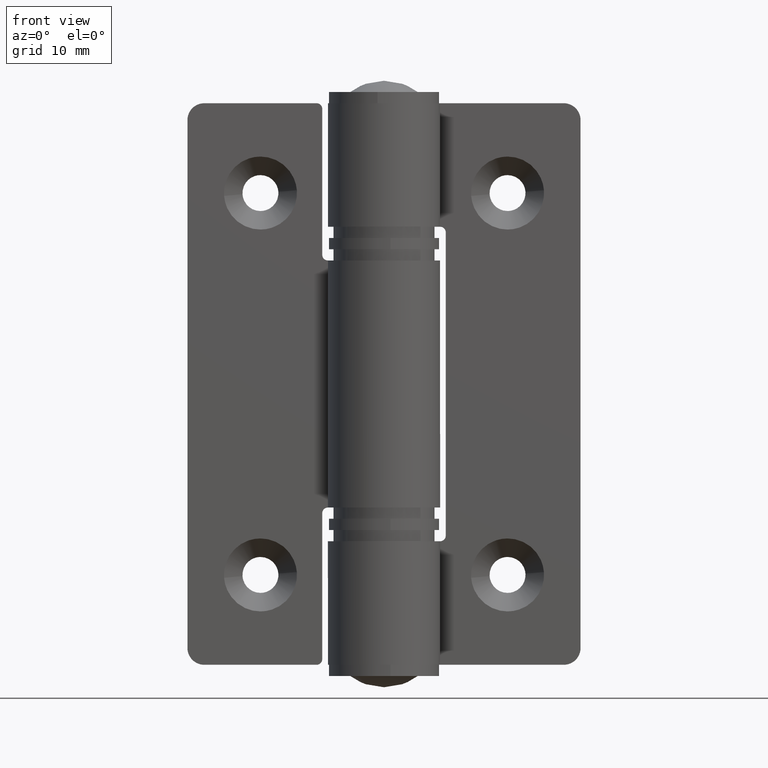
[diagram: clean part render]
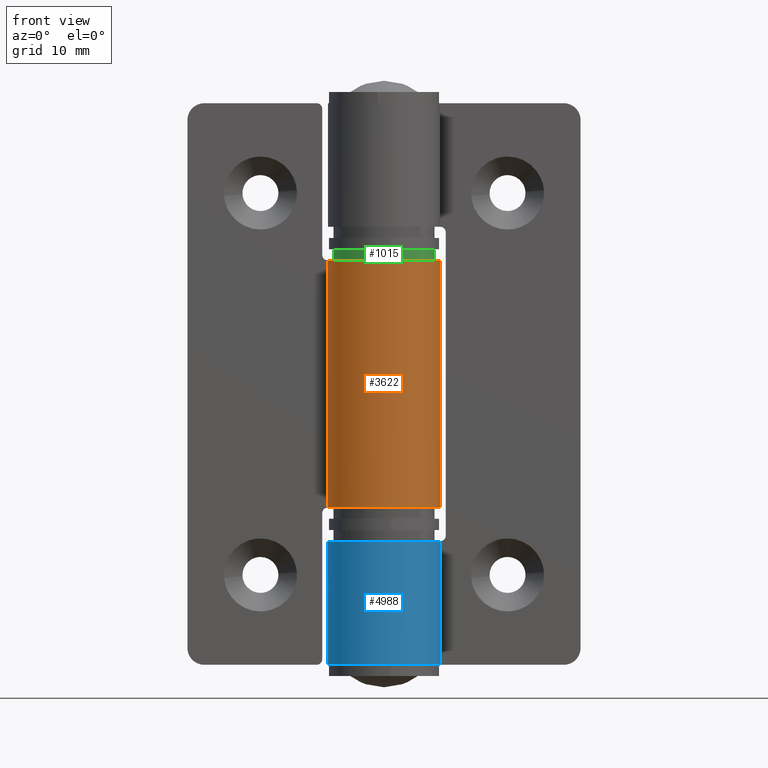
[diagram: same view with three faces highlighted in distinct colors, each labeled with its STEP entity id]
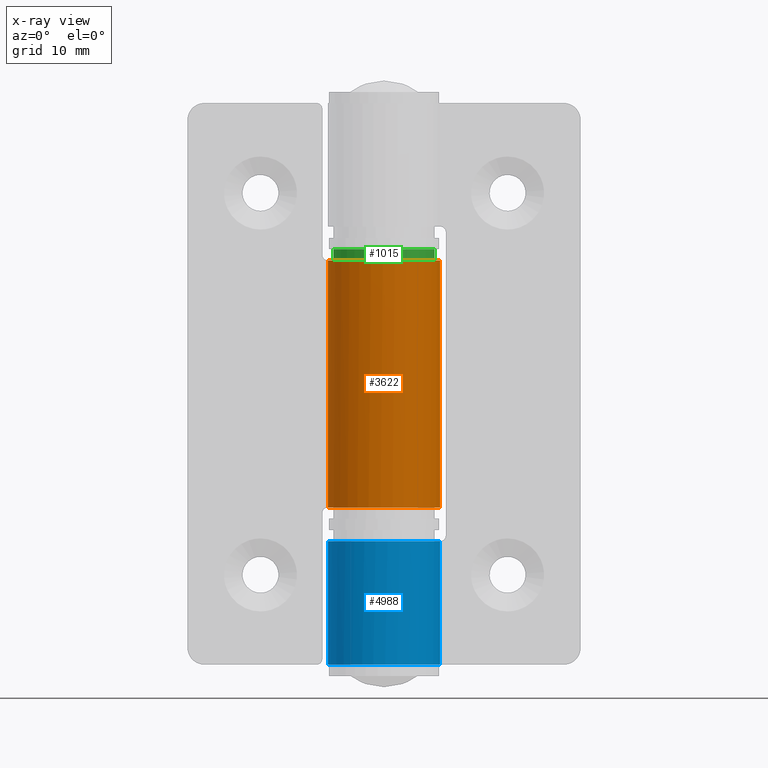
[diagram: x-ray of the same camera — body ghosted, the three highlighted faces saturated]
A machine part, front view with three faces highlighted in distinct colors.
The next image is the same camera in x-ray (body ghosted, the three faces saturated) — at least one of them is partly hidden behind the body in this view.
Their STEP definitions:

[orange] entity #3622 — the highlighted face is a freeform B-spline surface patch.
#3322=CARTESIAN_POINT('',(1.740830E-012,4.999999999999091,36.0));
#3323=VERTEX_POINT('',#3322);
#3358=CARTESIAN_POINT('',(-4.073082370878840,2.900000000000845,36.0));
#3359=VERTEX_POINT('',#3358);
#3365=CARTESIAN_POINT('',(-4.073082370878845,2.900000000000850,36.0));
#3366=CARTESIAN_POINT('',(-6.353626591384656,-0.303049813983671,36.0));
#3367=CARTESIAN_POINT('',(-3.778576303774068,-3.274501659264923,36.0));
#3368=CARTESIAN_POINT('',(-1.203526016163482,-6.245953504546176,36.0));
#3369=CARTESIAN_POINT('',(2.291287847479962,-4.444097208657318,36.0));
#3370=CARTESIAN_POINT('',(5.786101711123409,-2.642240912768461,36.0));
#3371=CARTESIAN_POINT('',(4.859037252549383,1.178879543615715,36.0));
#3372=CARTESIAN_POINT('',(3.931972793975359,4.999999999999883,36.0));
#3373=CARTESIAN_POINT('',(1.741196E-012,4.999999999999096,36.0));
#3381=(BOUNDED_CURVE()B_SPLINE_CURVE(2,(#3365,#3366,#3367,#3368,#3369,#3370,#3371,#3372,#3373),.UNSPECIFIED.,.F.,.U.)B_SPLINE_CURVE_WITH_KNOTS((3,2,2,2,3),(0.0,0.250000000000000,0.500000000000000,0.750000000000000,1.0),.UNSPECIFIED.)CURVE()GEOMETRIC_REPRESENTATION_ITEM()RATIONAL_B_SPLINE_CURVE((1.0,0.786058492964424,1.0,0.786058492964424,1.0,0.786058492964424,1.0,0.786058492964424,1.0))REPRESENTATION_ITEM(''));
#3382=EDGE_CURVE('',#3359,#3323,#3381,.T.);
#3440=CARTESIAN_POINT('',(1.740830E-012,4.999999999999091,13.999999999999799));
#3441=VERTEX_POINT('',#3440);
#3447=CARTESIAN_POINT('',(-4.073082370878840,2.900000000000845,13.999999999999799));
#3448=VERTEX_POINT('',#3447);
#3449=CARTESIAN_POINT('',(1.738135E-012,4.999999999999096,13.999999999999799));
#3450=CARTESIAN_POINT('',(3.931972793975359,4.999999999999885,13.999999999999797));
#3451=CARTESIAN_POINT('',(4.859037252549383,1.178879543615714,13.999999999999799));
#3452=CARTESIAN_POINT('',(5.786101711123407,-2.642240912768460,13.999999999999797));
#3453=CARTESIAN_POINT('',(2.291287847479965,-4.444097208657317,13.999999999999799));
#3454=CARTESIAN_POINT('',(-1.203526016163480,-6.245953504546177,13.999999999999797));
#3455=CARTESIAN_POINT('',(-3.778576303774069,-3.274501659264922,13.999999999999799));
#3456=CARTESIAN_POINT('',(-6.353626591384653,-0.303049813983671,13.999999999999797));
#3457=CARTESIAN_POINT('',(-4.073082370878847,2.900000000000848,13.999999999999799));
#3465=(BOUNDED_CURVE()B_SPLINE_CURVE(2,(#3449,#3450,#3451,#3452,#3453,#3454,#3455,#3456,#3457),.UNSPECIFIED.,.F.,.U.)B_SPLINE_CURVE_WITH_KNOTS((3,2,2,2,3),(0.0,0.250000000000000,0.500000000000000,0.750000000000000,1.0),.UNSPECIFIED.)CURVE()GEOMETRIC_REPRESENTATION_ITEM()RATIONAL_B_SPLINE_CURVE((1.0,0.786058492964424,1.0,0.786058492964424,1.0,0.786058492964424,1.0,0.786058492964424,1.0))REPRESENTATION_ITEM(''));
#3466=EDGE_CURVE('',#3441,#3448,#3465,.T.);
#3582=CARTESIAN_POINT('',(-4.073082370878840,2.900000000000845,36.0));
#3583=CARTESIAN_POINT('',(-4.073082370878840,2.900000000000845,13.999999999999799));
#3584=QUASI_UNIFORM_CURVE('',1,(#3582,#3583),.UNSPECIFIED.,.F.,.U.);
#3585=EDGE_CURVE('',#3359,#3448,#3584,.T.);
#3590=CARTESIAN_POINT('',(-3.966766701453392,3.043807145042223,36.550000000000011));
#3591=CARTESIAN_POINT('',(-3.966766701453392,3.043807145042223,13.436249999999790));
#3592=CARTESIAN_POINT('',(-7.862662186759799,-2.033422701348696,36.550000000000018));
#3593=CARTESIAN_POINT('',(-7.862662186759799,-2.033422701348696,13.436249999999792));
#3594=CARTESIAN_POINT('',(-1.993745344622242,-4.585300371925351,36.550000000000011));
#3595=CARTESIAN_POINT('',(-1.993745344622242,-4.585300371925351,13.436249999999790));
#3596=CARTESIAN_POINT('',(3.875171497515315,-7.137178042502007,36.550000000000018));
#3597=CARTESIAN_POINT('',(3.875171497515315,-7.137178042502007,13.436249999999792));
#3598=CARTESIAN_POINT('',(4.931428007688253,-0.825238029302350,36.550000000000011));
#3599=CARTESIAN_POINT('',(4.931428007688253,-0.825238029302350,13.436249999999790));
#3600=CARTESIAN_POINT('',(5.987684517861193,5.486701983897305,36.550000000000018));
#3601=CARTESIAN_POINT('',(5.987684517861193,5.486701983897305,13.436249999999792));
#3602=CARTESIAN_POINT('',(-0.392295478637415,4.984586668664655,36.550000000000011));
#3603=CARTESIAN_POINT('',(-0.392295478637415,4.984586668664655,13.436249999999790));
#3611=(BOUNDED_SURFACE()B_SPLINE_SURFACE(1,2,((#3590,#3592,#3594,#3596,#3598,#3600,#3602),(#3591,#3593,#3595,#3597,#3599,#3601,#3603)),.UNSPECIFIED.,.F.,.F.,.U.)B_SPLINE_SURFACE_WITH_KNOTS((2,2),(3,2,2,3),(0.0,23.113750000000220),(0.0,9.754651771315626,19.509303542631251,29.263955313946880),.UNSPECIFIED.)GEOMETRIC_REPRESENTATION_ITEM()RATIONAL_B_SPLINE_SURFACE(((1.0,0.615661475325658,1.0,0.615661475325658,1.0,0.615661475325658,1.0),(1.0,0.615661475325658,1.0,0.615661475325658,1.0,0.615661475325658,1.0)))REPRESENTATION_ITEM('')SURFACE());
#3612=CARTESIAN_POINT('',(1.740830E-012,4.999999999999091,36.0));
#3613=CARTESIAN_POINT('',(1.740830E-012,4.999999999999091,13.999999999999799));
#3614=QUASI_UNIFORM_CURVE('',1,(#3612,#3613),.UNSPECIFIED.,.F.,.U.);
#3615=EDGE_CURVE('',#3323,#3441,#3614,.T.);
#3616=ORIENTED_EDGE('',*,*,#3615,.F.);
#3617=ORIENTED_EDGE('',*,*,#3382,.F.);
#3618=ORIENTED_EDGE('',*,*,#3585,.T.);
#3619=ORIENTED_EDGE('',*,*,#3466,.F.);
#3620=EDGE_LOOP('',(#3616,#3617,#3618,#3619));
#3621=FACE_OUTER_BOUND('',#3620,.T.);
#3622=ADVANCED_FACE('',(#3621),#3611,.T.);

[blue] entity #4988 — the highlighted face is a freeform B-spline surface patch.
#4543=CARTESIAN_POINT('',(1.738135E-012,4.999999999999190,11.0));
#4544=VERTEX_POINT('',#4543);
#4550=CARTESIAN_POINT('',(4.073082370884395,2.900000000000750,11.0));
#4551=VERTEX_POINT('',#4550);
#4552=CARTESIAN_POINT('',(1.738135E-012,4.999999999999190,11.0));
#4553=CARTESIAN_POINT('',(-3.931972793971454,4.999999999998308,11.000000000000002));
#4554=CARTESIAN_POINT('',(-4.859037252544247,1.178879543614277,11.0));
#4555=CARTESIAN_POINT('',(-5.786101711117039,-2.642240912769751,11.000000000000002));
#4556=CARTESIAN_POINT('',(-2.291287847473639,-4.444097208657751,11.0));
#4557=CARTESIAN_POINT('',(1.203526016169762,-6.245953504545751,11.000000000000002));
#4558=CARTESIAN_POINT('',(3.778576303779822,-3.274501659264614,11.0));
#4559=CARTESIAN_POINT('',(6.353626591389886,-0.303049813983473,11.000000000000002));
#4560=CARTESIAN_POINT('',(4.073082370884399,2.900000000000754,11.0));
#4568=(BOUNDED_CURVE()B_SPLINE_CURVE(2,(#4552,#4553,#4554,#4555,#4556,#4557,#4558,#4559,#4560),.UNSPECIFIED.,.F.,.U.)B_SPLINE_CURVE_WITH_KNOTS((3,2,2,2,3),(0.0,0.250000000000000,0.500000000000000,0.750000000000000,1.0),.UNSPECIFIED.)CURVE()GEOMETRIC_REPRESENTATION_ITEM()RATIONAL_B_SPLINE_CURVE((1.0,0.786058492964457,1.0,0.786058492964457,1.0,0.786058492964457,1.0,0.786058492964457,1.0))REPRESENTATION_ITEM(''));
#4569=EDGE_CURVE('',#4544,#4551,#4568,.T.);
#4817=CARTESIAN_POINT('',(1.738135E-012,4.999999999999091,0.0));
#4818=VERTEX_POINT('',#4817);
#4853=CARTESIAN_POINT('',(4.073082370884395,2.900000000000750,0.0));
#4854=VERTEX_POINT('',#4853);
#4860=CARTESIAN_POINT('',(4.073082370884400,2.900000000000752,0.0));
#4861=CARTESIAN_POINT('',(6.353626591389884,-0.303049813983473,0.0));
#4862=CARTESIAN_POINT('',(3.778576303779824,-3.274501659264612,0.0));
#4863=CARTESIAN_POINT('',(1.203526016169763,-6.245953504545753,0.0));
#4864=CARTESIAN_POINT('',(-2.291287847473640,-4.444097208657750,0.0));
#4865=CARTESIAN_POINT('',(-5.786101711117044,-2.642240912769748,0.0));
#4866=CARTESIAN_POINT('',(-4.859037252544246,1.178879543614282,0.0));
#4867=CARTESIAN_POINT('',(-3.931972793971451,4.999999999998305,0.0));
#4868=CARTESIAN_POINT('',(1.736910E-012,4.999999999999096,0.0));
#4876=(BOUNDED_CURVE()B_SPLINE_CURVE(2,(#4860,#4861,#4862,#4863,#4864,#4865,#4866,#4867,#4868),.UNSPECIFIED.,.F.,.U.)B_SPLINE_CURVE_WITH_KNOTS((3,2,2,2,3),(0.0,0.250000000000000,0.500000000000000,0.750000000000000,1.0),.UNSPECIFIED.)CURVE()GEOMETRIC_REPRESENTATION_ITEM()RATIONAL_B_SPLINE_CURVE((1.0,0.786058492964457,1.0,0.786058492964457,1.0,0.786058492964457,1.0,0.786058492964457,1.0))REPRESENTATION_ITEM(''));
#4877=EDGE_CURVE('',#4854,#4818,#4876,.T.);
#4952=CARTESIAN_POINT('',(0.130884741541090,4.998286624876906,11.275000000000000));
#4953=CARTESIAN_POINT('',(0.130884741541090,4.998286624876906,-0.281874999999999));
#4954=CARTESIAN_POINT('',(-6.190479291165865,5.163817367646388,11.275000000000002));
#4955=CARTESIAN_POINT('',(-6.190479291165865,5.163817367646388,-0.281875000000000));
#4956=CARTESIAN_POINT('',(-4.893741260658319,-1.025327495825330,11.275000000000000));
#4957=CARTESIAN_POINT('',(-4.893741260658319,-1.025327495825330,-0.281874999999999));
#4958=CARTESIAN_POINT('',(-3.597003230150774,-7.214472359297051,11.275000000000002));
#4959=CARTESIAN_POINT('',(-3.597003230150774,-7.214472359297051,-0.281875000000000));
#4960=CARTESIAN_POINT('',(2.126264062495511,-4.525373038385268,11.275000000000000));
#4961=CARTESIAN_POINT('',(2.126264062495511,-4.525373038385268,-0.281874999999999));
#4962=CARTESIAN_POINT('',(7.849531355141798,-1.836273717473486,11.275000000000002));
#4963=CARTESIAN_POINT('',(7.849531355141798,-1.836273717473486,-0.281875000000000));
#4964=CARTESIAN_POINT('',(3.913040784263549,3.112573183188283,11.275000000000000));
#4965=CARTESIAN_POINT('',(3.913040784263549,3.112573183188283,-0.281874999999999));
#4973=(BOUNDED_SURFACE()B_SPLINE_SURFACE(1,2,((#4952,#4954,#4956,#4958,#4960,#4962,#4964),(#4953,#4955,#4957,#4959,#4961,#4963,#4965)),.UNSPECIFIED.,.F.,.F.,.U.)B_SPLINE_SURFACE_WITH_KNOTS((2,2),(3,2,2,3),(0.0,11.556875000000000),(0.0,9.682736480552412,19.365472961104832,29.048209441657239),.UNSPECIFIED.)GEOMETRIC_REPRESENTATION_ITEM()RATIONAL_B_SPLINE_SURFACE(((1.0,0.620235491268260,1.0,0.620235491268260,1.0,0.620235491268260,1.0),(1.0,0.620235491268260,1.0,0.620235491268260,1.0,0.620235491268260,1.0)))REPRESENTATION_ITEM('')SURFACE());
#4974=ORIENTED_EDGE('',*,*,#4569,.F.);
#4975=CARTESIAN_POINT('',(1.738135E-012,4.999999999999190,11.0));
#4976=CARTESIAN_POINT('',(1.738135E-012,4.999999999999091,0.0));
#4977=QUASI_UNIFORM_CURVE('',1,(#4975,#4976),.UNSPECIFIED.,.F.,.U.);
#4978=EDGE_CURVE('',#4544,#4818,#4977,.T.);
#4979=ORIENTED_EDGE('',*,*,#4978,.T.);
#4980=ORIENTED_EDGE('',*,*,#4877,.F.);
#4981=CARTESIAN_POINT('',(4.073082370884395,2.900000000000750,11.0));
#4982=CARTESIAN_POINT('',(4.073082370884395,2.900000000000750,0.0));
#4983=QUASI_UNIFORM_CURVE('',1,(#4981,#4982),.UNSPECIFIED.,.F.,.U.);
#4984=EDGE_CURVE('',#4551,#4854,#4983,.T.);
#4985=ORIENTED_EDGE('',*,*,#4984,.F.);
#4986=EDGE_LOOP('',(#4974,#4979,#4980,#4985));
#4987=FACE_OUTER_BOUND('',#4986,.T.);
#4988=ADVANCED_FACE('',(#4987),#4973,.T.);

[green] entity #1015 — the highlighted face is a freeform B-spline surface patch.
#870=CARTESIAN_POINT('',(2.061552812808675,4.0,10.999999999999860));
#871=VERTEX_POINT('',#870);
#872=CARTESIAN_POINT('',(-2.061552812805995,4.0,11.0));
#873=VERTEX_POINT('',#872);
#879=CARTESIAN_POINT('',(-2.061552812805995,4.0,11.999999999999799));
#880=VERTEX_POINT('',#879);
#881=CARTESIAN_POINT('',(-2.061552812805995,4.0,11.999999999999799));
#882=CARTESIAN_POINT('',(-2.061552812805995,4.0,11.0));
#883=QUASI_UNIFORM_CURVE('',1,(#881,#882),.UNSPECIFIED.,.F.,.U.);
#884=EDGE_CURVE('',#880,#873,#883,.T.);
#886=CARTESIAN_POINT('',(2.061552812811665,4.0,11.999999999999799));
#887=VERTEX_POINT('',#886);
#893=CARTESIAN_POINT('',(2.061552812811665,4.0,11.999999999999799));
#894=CARTESIAN_POINT('',(2.061552812808675,4.0,10.999999999999860));
#895=QUASI_UNIFORM_CURVE('',1,(#893,#894),.UNSPECIFIED.,.F.,.U.);
#896=EDGE_CURVE('',#887,#871,#895,.T.);
#907=CARTESIAN_POINT('',(2.061552812808676,4.0,10.999999999999860));
#908=CARTESIAN_POINT('',(5.207376356084033,2.378679656440233,10.999999999999861));
#909=CARTESIAN_POINT('',(4.373213921133783,-1.060660171780316,10.999999999999860));
#910=CARTESIAN_POINT('',(3.539051486183531,-4.500000000000864,10.999999999999861));
#911=CARTESIAN_POINT('',(-1.190221E-012,-4.499999999999930,10.999999999999860));
#912=CARTESIAN_POINT('',(-3.539051486185914,-4.499999999998993,10.999999999999861));
#913=CARTESIAN_POINT('',(-4.373213921134344,-1.060660171778001,10.999999999999860));
#914=CARTESIAN_POINT('',(-5.207376356082775,2.378679656442987,10.999999999999861));
#915=CARTESIAN_POINT('',(-2.061552812805995,4.0,11.0));
#923=(BOUNDED_CURVE()B_SPLINE_CURVE(2,(#907,#908,#909,#910,#911,#912,#913,#914,#915),.UNSPECIFIED.,.F.,.U.)B_SPLINE_CURVE_WITH_KNOTS((3,2,2,2,3),(0.0,0.250000000000000,0.500000000000000,0.750000000000000,1.0),.UNSPECIFIED.)CURVE()GEOMETRIC_REPRESENTATION_ITEM()RATIONAL_B_SPLINE_CURVE((1.0,0.786035069317958,1.0,0.786035069317958,1.0,0.786035069317958,1.0,0.786035069317958,1.0))REPRESENTATION_ITEM(''));
#924=EDGE_CURVE('',#871,#873,#923,.T.);
#959=CARTESIAN_POINT('',(2.061552812811665,4.0,11.999999999999799));
#960=CARTESIAN_POINT('',(5.207376356084960,2.378679656437404,11.999999999999821));
#961=CARTESIAN_POINT('',(4.373213921133313,-1.060660171782253,11.999999999999821));
#962=CARTESIAN_POINT('',(3.539051486181665,-4.500000000001910,11.999999999999821));
#963=CARTESIAN_POINT('',(-2.517159E-012,-4.499999999999930,11.999999999999821));
#964=CARTESIAN_POINT('',(-3.539051486186704,-4.499999999997950,11.999999999999821));
#965=CARTESIAN_POINT('',(-4.373213921134501,-1.060660171777356,11.999999999999821));
#966=CARTESIAN_POINT('',(-5.207376356082297,2.378679656443234,11.999999999999821));
#967=CARTESIAN_POINT('',(-2.061552812805995,4.0,11.999999999999799));
#975=(BOUNDED_CURVE()B_SPLINE_CURVE(2,(#959,#960,#961,#962,#963,#964,#965,#966,#967),.UNSPECIFIED.,.F.,.U.)B_SPLINE_CURVE_WITH_KNOTS((3,2,2,2,3),(0.0,0.250000000000000,0.500000000000000,0.750000000000000,1.0),.UNSPECIFIED.)CURVE()GEOMETRIC_REPRESENTATION_ITEM()RATIONAL_B_SPLINE_CURVE((1.0,0.786035069318003,1.0,0.786035069318003,1.0,0.786035069318003,1.0,0.786035069318003,1.0))REPRESENTATION_ITEM(''));
#976=EDGE_CURVE('',#887,#880,#975,.T.);
#987=CARTESIAN_POINT('',(-2.026568173198895,4.017837906060502,12.024999999999819));
#988=CARTESIAN_POINT('',(-2.026568173198895,4.017837906060502,10.974374999999860));
#989=CARTESIAN_POINT('',(-7.077682690244695,1.470092536844062,12.024999999999821));
#990=CARTESIAN_POINT('',(-7.077682690244695,1.470092536844062,10.974374999999860));
#991=CARTESIAN_POINT('',(-3.458982333563934,-2.878444235362558,12.024999999999819));
#992=CARTESIAN_POINT('',(-3.458982333563934,-2.878444235362558,10.974374999999860));
#993=CARTESIAN_POINT('',(0.159718023116825,-7.226981007569179,12.024999999999821));
#994=CARTESIAN_POINT('',(0.159718023116825,-7.226981007569179,10.974374999999860));
#995=CARTESIAN_POINT('',(3.582771618982912,-2.722819774830848,12.024999999999819));
#996=CARTESIAN_POINT('',(3.582771618982912,-2.722819774830848,10.974374999999860));
#997=CARTESIAN_POINT('',(7.005825214848999,1.781341457907484,12.024999999999821));
#998=CARTESIAN_POINT('',(7.005825214848999,1.781341457907484,10.974374999999860));
#999=CARTESIAN_POINT('',(1.847085827236972,4.103446593635606,12.024999999999819));
#1000=CARTESIAN_POINT('',(1.847085827236972,4.103446593635606,10.974374999999860));
#1008=(BOUNDED_SURFACE()B_SPLINE_SURFACE(1,2,((#987,#989,#991,#993,#995,#997,#999),(#988,#990,#992,#994,#996,#998,#1000)),.UNSPECIFIED.,.F.,.F.,.U.)B_SPLINE_SURFACE_WITH_KNOTS((2,2),(3,2,2,3),(0.0,1.0),(0.0,8.682169334716127,17.364338669432250,26.046508004148379),.UNSPECIFIED.)GEOMETRIC_REPRESENTATION_ITEM()RATIONAL_B_SPLINE_SURFACE(((1.0,0.622514636637620,1.0,0.622514636637620,1.0,0.622514636637620,1.0),(1.0,0.622514636637620,1.0,0.622514636637620,1.0,0.622514636637620,1.0)))REPRESENTATION_ITEM('')SURFACE());
#1009=ORIENTED_EDGE('',*,*,#884,.T.);
#1010=ORIENTED_EDGE('',*,*,#924,.F.);
#1011=ORIENTED_EDGE('',*,*,#896,.F.);
#1012=ORIENTED_EDGE('',*,*,#976,.T.);
#1013=EDGE_LOOP('',(#1009,#1010,#1011,#1012));
#1014=FACE_OUTER_BOUND('',#1013,.T.);
#1015=ADVANCED_FACE('',(#1014),#1008,.T.);